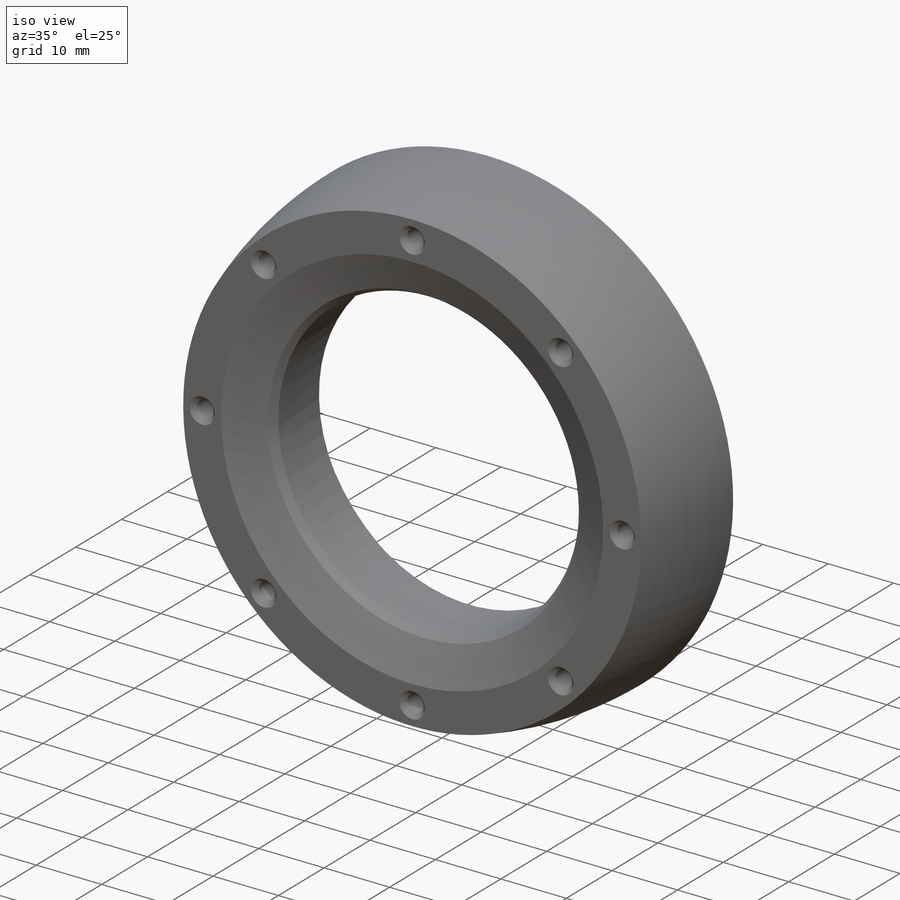
[diagram: iso view]
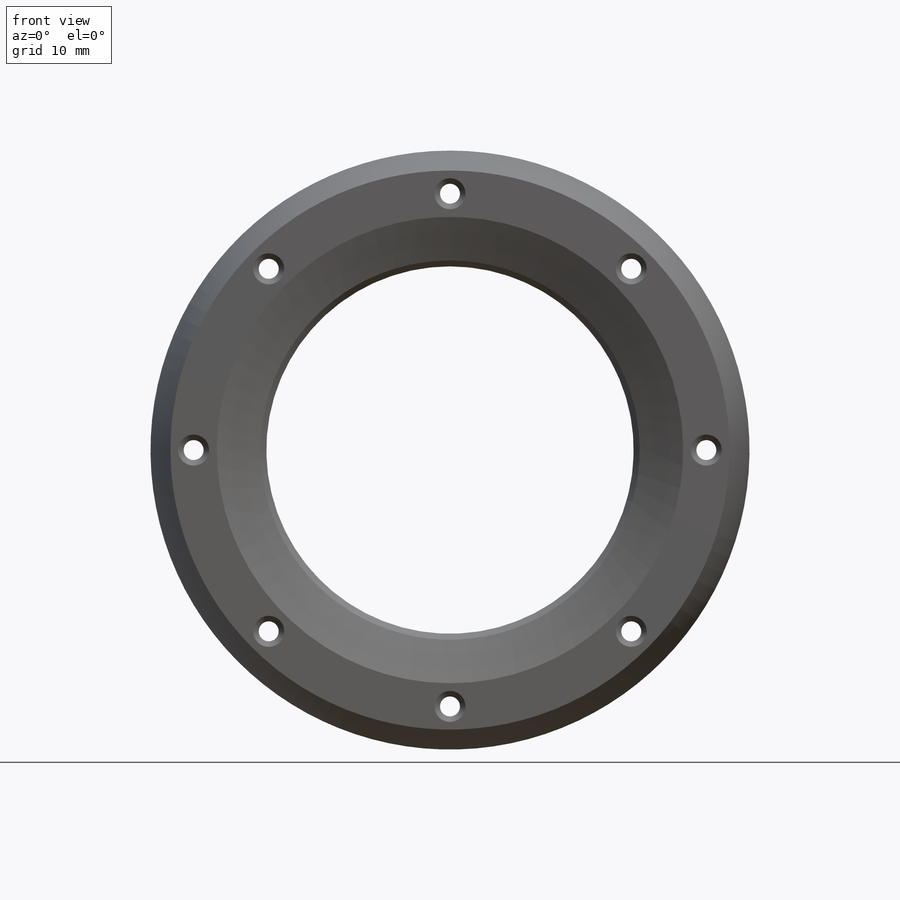
[diagram: front view]
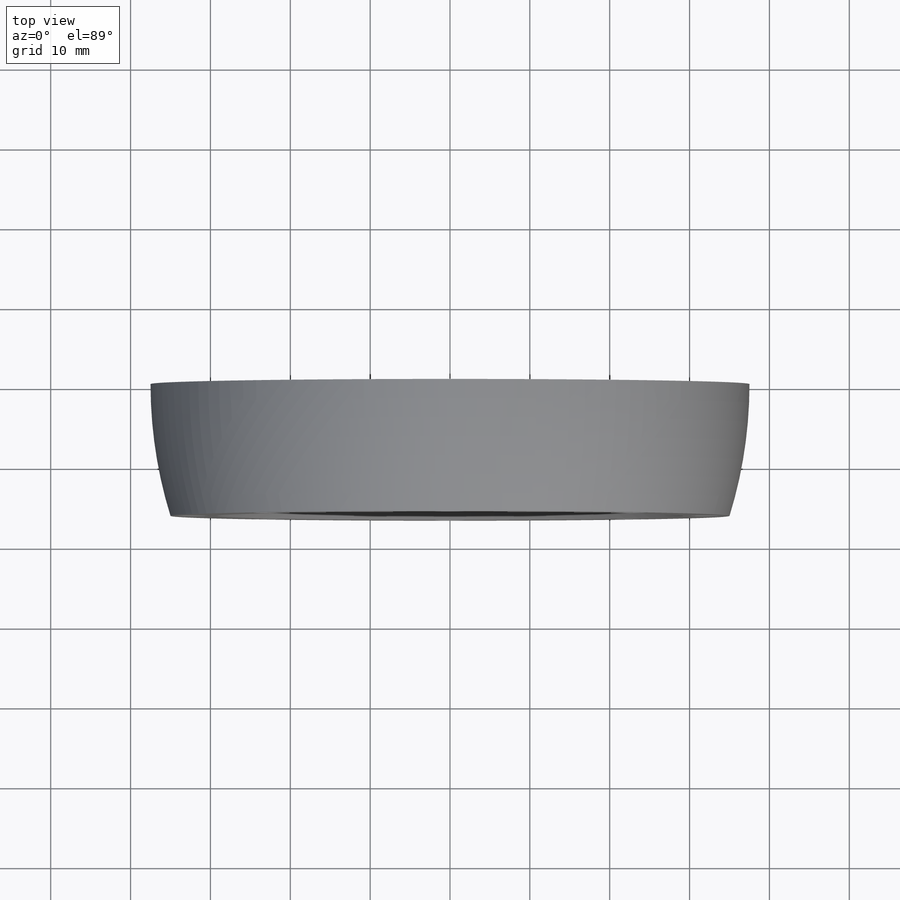
[diagram: top view]
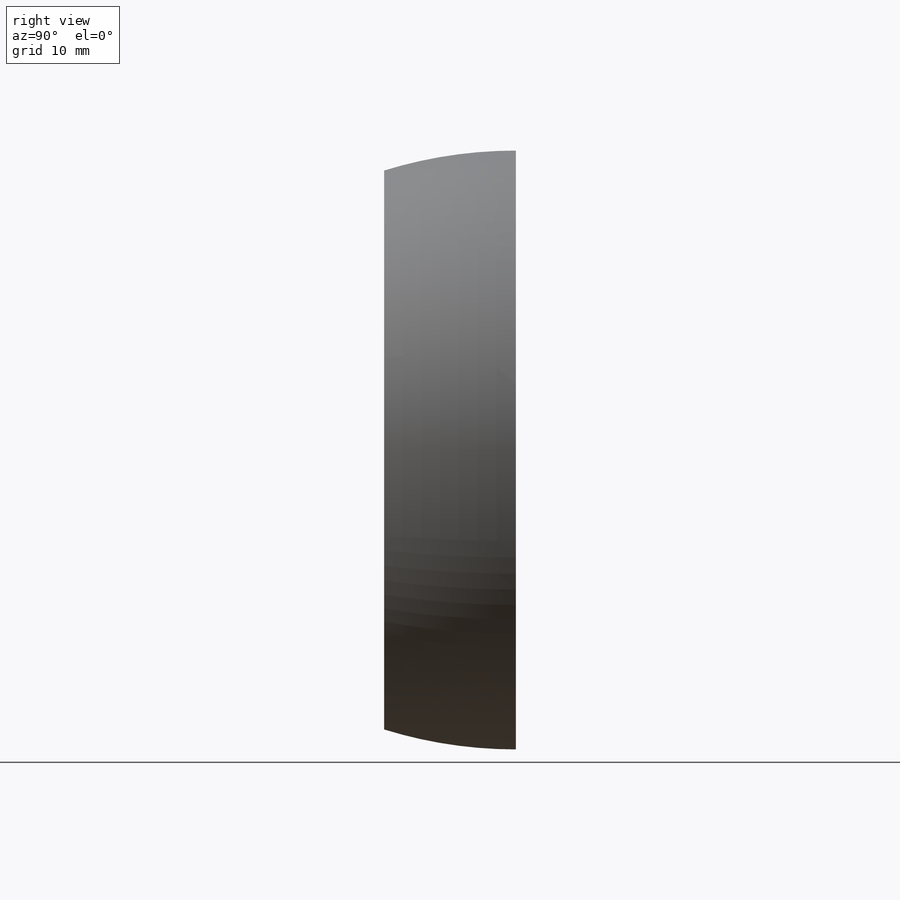
[diagram: right view]
SOLIDWORKS PART (.sldprt)
format: sldprt  version: not decoded by parser v0  size: 968,704 bytes
history: native  units: mm
features: sketch x9, plane x3, cut_extrude x2, cut_revolve x2, hole x2, material x1, revolve x1, chamfer x1 (+9 scaffold rows collapsed)
feature tree (30):
  scaffold x9  (default folders/planes/origin — collapsed)
  material  "PVC hart"
  plane  "Ebene vorne"
  plane  "Ebene oben"
  plane  "Ebene rechts"
  sketch  "Skizze1"  dims[c1.D7=17.0mm c1.D8=13.0mm c1.D9=55.7mm c1.D1=0.5mm c1.D2=4.0mm c1.D3=75.0mm c1.D4=33.0mm c1.D5=70.0mm c1.D6=44.0mm c2.D1=0.5mm c2.D2=~3.205231mm c3.D2=135.0deg c3.D7=2.5mm c3.D8=~12.541838mm c3.D1=0.5mm c4.D8=5.5mm c4.D1=3.5mm c4.D6=18.0mm c4.D3=75.0mm c4.D10=7.0mm c4.D11=2.0mm c4.D12=~10.094026mm c5.D12=30.0deg c6.D12=~4.909127mm c7.D12=45.0deg c7.D13=2.5mm c8.D12=59.0mm c8.D13=2.3mm]
  revolve  "Rotation"  Angle=360deg
  chamfer  "Fase1"  Distance=2.5mm Angle=45deg
  sketch  "Skizze11"
  cut_extrude  "Schnitt-Linear austragen3"  [1 undecoded]
  sketch  "Skizze4"  dims[D2=0.5mm D1=0.5mm]
  cut_revolve  "Druck-Toleranz A"  Angle=360deg
  sketch  "Skizze5"  dims[D1=0.5mm D2=0.5mm]
  cut_revolve  "Druck-Toleranz I"  Angle=360deg
  hole  "Formsenkung für M3 Senkschraube mit Innensechskant1"  Diameter=1.6mm Depth=22mm
  sketch  "Skizze6"  dims[c1.D1=~62.441988mm c2.D1=45.0deg]
  sketch  "Skizze7"  dims[Bohrerdurchmesser=1.6mm Bohrungstiefe=22.0mm Senkdurchmesser (Oben)=3.9mm Senkwinkel (Oben)=90.0deg Spitzenwinkel=118.0deg]
  hole  "Formsenkung für M3 Senkschraube mit Innensechskant2"  Diameter=1.6mm Depth=22mm
  sketch  "Skizze8"  dims[c1.D1=~62.441988mm c2.D1=45.0deg]
  sketch  "Skizze9"  dims[Bohrerdurchmesser=1.6mm Bohrungstiefe=22.0mm Senkdurchmesser (Oben)=3.9mm Senkwinkel (Oben)=90.0deg Spitzenwinkel=118.0deg]
  sketch  "Skizze10"  dims[D1=2.5mm]
  cut_extrude  "Schnitt-Linear austragen2"  [1 undecoded]
decode coverage: 14 of 17 modeling features carry decoded parameters
note: ~ marks probable driven/reference dimensions
note: 2 parameter values undecoded
note: suppression state not decoded; provenance and decode notes live in map.json
